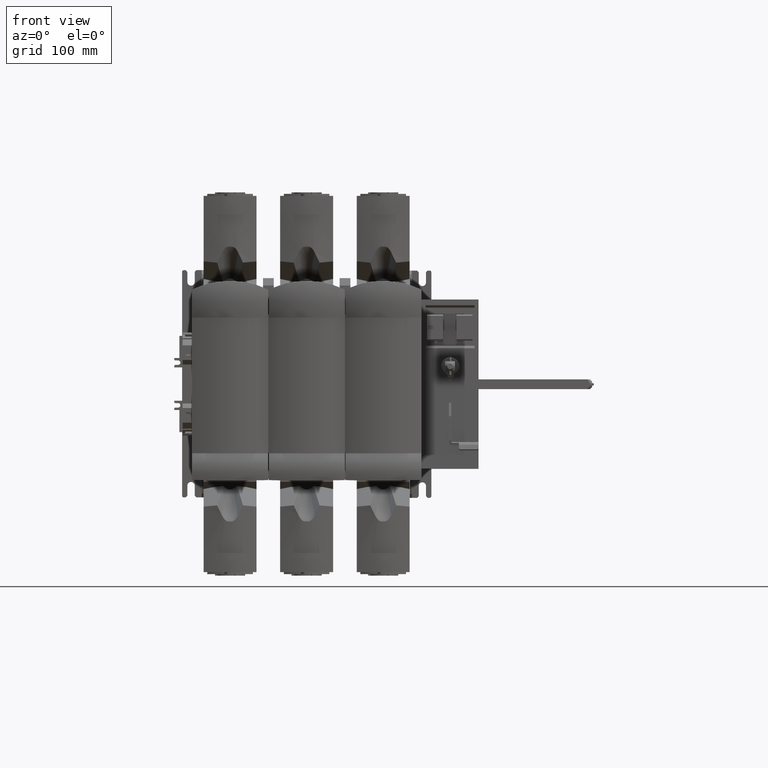
[diagram: clean part render]
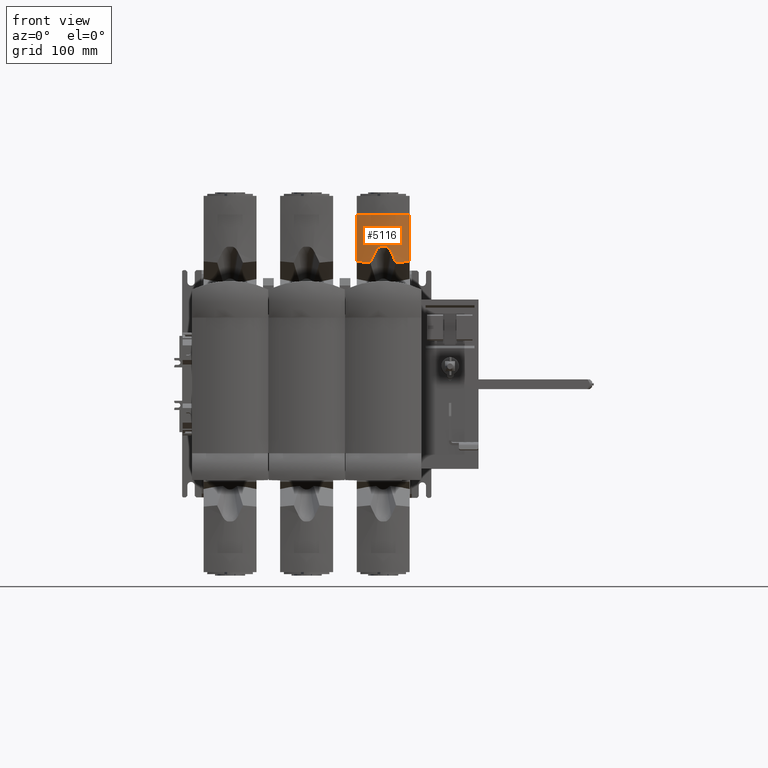
[diagram: same view with one face highlighted and labeled with its STEP entity id]
A machine part, front view. The second image highlights one B-rep face of the part: STEP entity #5116.
In plain terms, the highlighted cylindrical surface (partial cylindrical patch) has radius 92.025 mm, axis along (0, 0, 1).
Its self-contained STEP definition (entity closure, byte-faithful):
#246=ELLIPSE('',#62005,248.974562627707,92.025);
#247=ELLIPSE('',#62006,248.974562627091,92.025);
#653=B_SPLINE_CURVE_WITH_KNOTS('',3,(#104439,#104440,#104441,#104442),.UNSPECIFIED.,
.F.,.F.,(4,4),(0.,1.),.UNSPECIFIED.);
#654=B_SPLINE_CURVE_WITH_KNOTS('',3,(#104446,#104447,#104448,#104449,#104450,
#104451,#104452,#104453,#104454,#104455),.UNSPECIFIED.,.F.,.F.,(4,2,2,2,
4),(0.,0.25,0.5,0.75,1.),.UNSPECIFIED.);
#655=B_SPLINE_CURVE_WITH_KNOTS('',3,(#104459,#104460,#104461,#104462),.UNSPECIFIED.,
.F.,.F.,(4,4),(0.,1.),.UNSPECIFIED.);
#1125=CYLINDRICAL_SURFACE('',#62007,92.025);
#1853=CIRCLE('',#62004,92.025);
#5116=ADVANCED_FACE('',(#10504),#1125,.T.);
#10504=FACE_OUTER_BOUND('',#13800,.T.);
#13800=EDGE_LOOP('',(#29658,#29659,#29660,#29661,#29662,#29663,#29664,#29665));
#29658=ORIENTED_EDGE('',*,*,#43942,.F.);
#29659=ORIENTED_EDGE('',*,*,#43927,.F.);
#29660=ORIENTED_EDGE('',*,*,#43943,.F.);
#29661=ORIENTED_EDGE('',*,*,#43944,.F.);
#29662=ORIENTED_EDGE('',*,*,#43945,.T.);
#29663=ORIENTED_EDGE('',*,*,#43946,.F.);
#29664=ORIENTED_EDGE('',*,*,#43947,.F.);
#29665=ORIENTED_EDGE('',*,*,#43935,.T.);
#35804=VERTEX_POINT('',#104371);
#35805=VERTEX_POINT('',#104373);
#35809=VERTEX_POINT('',#104385);
#35810=VERTEX_POINT('',#104387);
#35815=VERTEX_POINT('',#104443);
#35816=VERTEX_POINT('',#104445);
#35817=VERTEX_POINT('',#104456);
#35818=VERTEX_POINT('',#104458);
#43927=EDGE_CURVE('',#35804,#35805,#51111,.T.);
#43935=EDGE_CURVE('',#35810,#35809,#51119,.T.);
#43942=EDGE_CURVE('',#35805,#35809,#1853,.T.);
#43943=EDGE_CURVE('',#35815,#35804,#653,.T.);
#43944=EDGE_CURVE('',#35816,#35815,#246,.T.);
#43945=EDGE_CURVE('',#35816,#35817,#654,.T.);
#43946=EDGE_CURVE('',#35818,#35817,#247,.T.);
#43947=EDGE_CURVE('',#35810,#35818,#655,.T.);
#51111=LINE('',#104372,#58177);
#51119=LINE('',#104386,#58185);
#58177=VECTOR('',#76033,1.);
#58185=VECTOR('',#76043,1.);
#62004=AXIS2_PLACEMENT_3D('',#104438,#76049,#76050);
#62005=AXIS2_PLACEMENT_3D('',#104444,#76051,#76052);
#62006=AXIS2_PLACEMENT_3D('',#104457,#76053,#76054);
#62007=AXIS2_PLACEMENT_3D('',#104463,#76055,#76056);
#76033=DIRECTION('',(0.,0.,1.));
#76043=DIRECTION('',(0.,0.,1.));
#76049=DIRECTION('',(0.,0.,1.));
#76050=DIRECTION('',(0.999999999999995,0.,0.));
#76051=DIRECTION('',(0.696364240320588,-0.615191680474682,-0.369616072536717));
#76052=DIRECTION('',(0.277003541381445,-0.244714280620494,0.92918456666183));
#76053=DIRECTION('',(-0.696364240320891,-0.61519168047379,-0.369616072537631));
#76054=DIRECTION('',(-0.277003541382359,-0.24471428062084,0.929184566661466));
#76055=DIRECTION('',(0.,0.,1.));
#76056=DIRECTION('',(0.999999999999995,0.,0.));
#104371=CARTESIAN_POINT('',(-4165.99454487739,-416.072068348011,158.442936894574));
#104372=CARTESIAN_POINT('',(-4165.99454487739,-416.072068348011,153.648436029539));
#104373=CARTESIAN_POINT('',(-4165.99454487739,-416.072068348011,215.648436029539));
#104385=CARTESIAN_POINT('',(-4100.99454487168,-416.067949838173,215.648436029539));
#104386=CARTESIAN_POINT('',(-4100.99454487168,-416.067949838173,153.648436029539));
#104387=CARTESIAN_POINT('',(-4100.99454487168,-416.067949838173,158.444368051974));
#104438=CARTESIAN_POINT('',(-4133.4999999998,-329.974999999559,215.648436029539));
#104439=CARTESIAN_POINT('',(-4149.33998664021,-420.626505493022,156.846015809317));
#104440=CARTESIAN_POINT('',(-4154.98568258197,-419.640005072466,157.194860753076));
#104441=CARTESIAN_POINT('',(-4160.5948904594,-418.109992706814,157.734764408359));
#104442=CARTESIAN_POINT('',(-4165.99454487739,-416.072068348011,158.442936894574));
#104443=CARTESIAN_POINT('',(-4149.33998664021,-420.626505493022,156.846015809316));
#104444=CARTESIAN_POINT('',(-4133.4999999998,-329.974999999559,35.8078492828934));
#104445=CARTESIAN_POINT('',(-4143.36070407978,-421.470175501041,169.51531694581));
#104446=CARTESIAN_POINT('',(-4143.36070407983,-421.470175501036,169.515316945833));
#104447=CARTESIAN_POINT('',(-4142.40989314282,-421.572647191312,171.477218824725));
#104448=CARTESIAN_POINT('',(-4141.14894376085,-421.696485075608,173.341030100934));
#104449=CARTESIAN_POINT('',(-4137.84748098144,-421.912133815716,176.258263424396));
#104450=CARTESIAN_POINT('',(-4135.72983231536,-421.999802776928,177.282438100018));
#104451=CARTESIAN_POINT('',(-4131.2864762277,-422.000196499645,177.287153253294));
#104452=CARTESIAN_POINT('',(-4129.17159621534,-421.913201945814,176.272039043919));
#104453=CARTESIAN_POINT('',(-4125.85152851414,-421.696692855528,173.344510660563));
#104454=CARTESIAN_POINT('',(-4124.5975063833,-421.573444660042,171.492486996699));
#104455=CARTESIAN_POINT('',(-4123.63929591982,-421.470175501041,169.51531694584));
#104456=CARTESIAN_POINT('',(-4123.63929591987,-421.470175501047,169.515316945814));
#104457=CARTESIAN_POINT('',(-4133.4999999998,-329.974999999559,35.8078492833372));
#104458=CARTESIAN_POINT('',(-4117.66001335943,-420.626505493031,156.846015809337));
#104459=CARTESIAN_POINT('',(-4100.99454487168,-416.067949838174,158.444368051974));
#104460=CARTESIAN_POINT('',(-4106.42820337755,-418.119494628717,157.73147469082));
#104461=CARTESIAN_POINT('',(-4111.98409413744,-419.634724008998,157.196728235626));
#104462=CARTESIAN_POINT('',(-4117.66001335943,-420.626505493031,156.846015809337));
#104463=CARTESIAN_POINT('',(-4133.4999999998,-329.974999999559,153.648436029539));